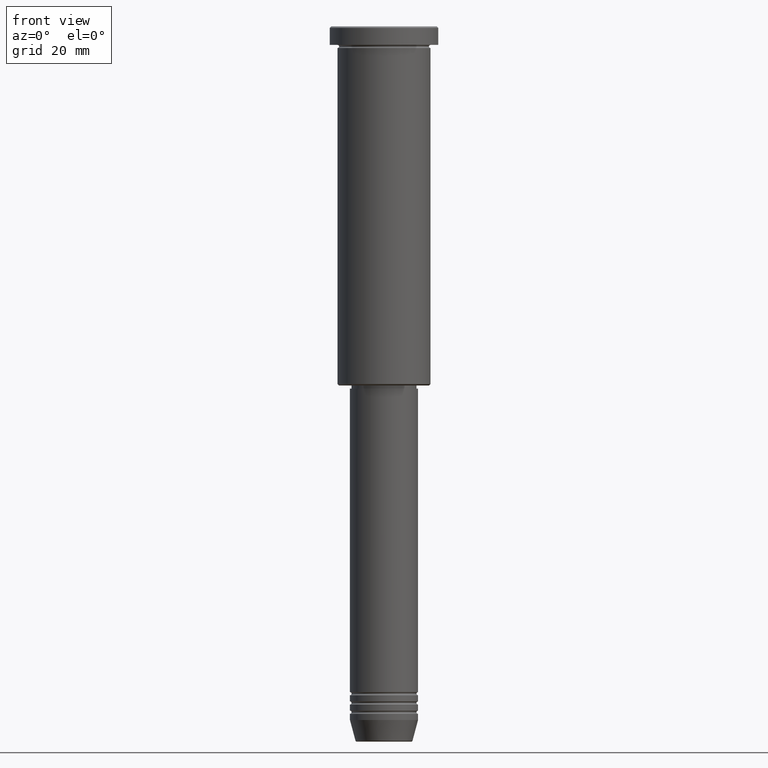
[diagram: clean part render]
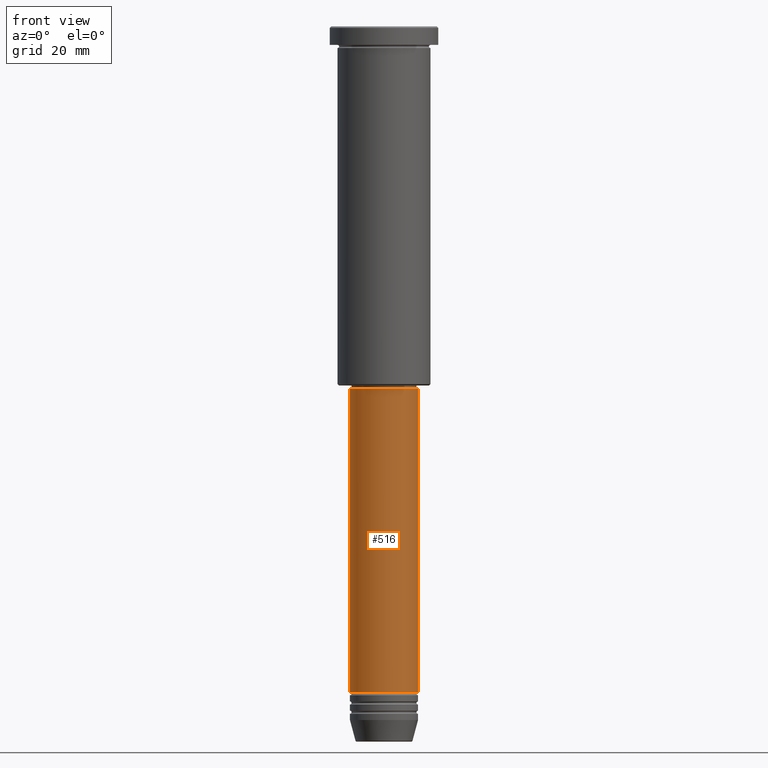
[diagram: same view with one face highlighted and labeled with its STEP entity id]
A machine part, front view. The second image highlights one B-rep face of the part: STEP entity #516.
In plain terms, the highlighted cylindrical surface (edge-blend (fillet) strip) has radius 11 mm, axis along (-0, -0, 1).
Its self-contained STEP definition (entity closure, byte-faithful):
#8 = CIRCLE ( 'NONE', #29, 11.00000000000000000 ) ;
#19 = DIRECTION ( 'NONE',  ( -0.000000000000000000, -0.000000000000000000, 1.000000000000000000 ) ) ;
#29 = AXIS2_PLACEMENT_3D ( 'NONE', #1095, #633, #100 ) ;
#42 = LINE ( 'NONE', #127, #1035 ) ;
#100 = DIRECTION ( 'NONE',  ( 1.000000000000000000, 0.000000000000000000, 0.000000000000000000 ) ) ;
#106 = VERTEX_POINT ( 'NONE', #1085 ) ;
#127 = CARTESIAN_POINT ( 'NONE',  ( -11.00000000000000000, 1.347111479062088405E-15, 0.000000000000000000 ) ) ;
#153 = CARTESIAN_POINT ( 'NONE',  ( 0.000000000000000000, 0.000000000000000000, 0.000000000000000000 ) ) ;
#160 = CIRCLE ( 'NONE', #355, 11.00000000000000000 ) ;
#177 = AXIS2_PLACEMENT_3D ( 'NONE', #153, #897, #445 ) ;
#205 = CARTESIAN_POINT ( 'NONE',  ( -11.00000000000000000, 1.347111479062088405E-15, -117.0000000000000000 ) ) ;
#212 = VECTOR ( 'NONE', #603, 1000.000000000000000 ) ;
#226 = CARTESIAN_POINT ( 'NONE',  ( 11.00000000000000000, 0.000000000000000000, 0.000000000000000000 ) ) ;
#317 = EDGE_LOOP ( 'NONE', ( #333, #1120, #569, #737 ) ) ;
#333 = ORIENTED_EDGE ( 'NONE', *, *, #587, .F. ) ;
#339 = FACE_OUTER_BOUND ( 'NONE', #317, .T. ) ;
#355 = AXIS2_PLACEMENT_3D ( 'NONE', #645, #19, #755 ) ;
#362 = EDGE_CURVE ( 'NONE', #635, #1171, #683, .T. ) ;
#438 = CYLINDRICAL_SURFACE ( 'NONE', #177, 11.00000000000000000 ) ;
#445 = DIRECTION ( 'NONE',  ( 1.000000000000000000, 0.000000000000000000, 0.000000000000000000 ) ) ;
#516 = ADVANCED_FACE ( 'NONE', ( #339 ), #438, .T. ) ;
#569 = ORIENTED_EDGE ( 'NONE', *, *, #362, .T. ) ;
#587 = EDGE_CURVE ( 'NONE', #106, #592, #42, .T. ) ;
#592 = VERTEX_POINT ( 'NONE', #205 ) ;
#603 = DIRECTION ( 'NONE',  ( -0.000000000000000000, -0.000000000000000000, 1.000000000000000000 ) ) ;
#633 = DIRECTION ( 'NONE',  ( -0.000000000000000000, -0.000000000000000000, 1.000000000000000000 ) ) ;
#635 = VERTEX_POINT ( 'NONE', #1040 ) ;
#645 = CARTESIAN_POINT ( 'NONE',  ( 0.000000000000000000, 0.000000000000000000, -214.9999999999999716 ) ) ;
#683 = LINE ( 'NONE', #226, #212 ) ;
#687 = DIRECTION ( 'NONE',  ( -0.000000000000000000, -0.000000000000000000, 1.000000000000000000 ) ) ;
#737 = ORIENTED_EDGE ( 'NONE', *, *, #895, .F. ) ;
#755 = DIRECTION ( 'NONE',  ( 1.000000000000000000, 0.000000000000000000, 0.000000000000000000 ) ) ;
#895 = EDGE_CURVE ( 'NONE', #592, #1171, #8, .T. ) ;
#897 = DIRECTION ( 'NONE',  ( -0.000000000000000000, -0.000000000000000000, 1.000000000000000000 ) ) ;
#1006 = EDGE_CURVE ( 'NONE', #106, #635, #160, .T. ) ;
#1027 = CARTESIAN_POINT ( 'NONE',  ( 11.00000000000000000, 0.000000000000000000, -117.0000000000000000 ) ) ;
#1035 = VECTOR ( 'NONE', #687, 1000.000000000000000 ) ;
#1040 = CARTESIAN_POINT ( 'NONE',  ( 11.00000000000000000, 0.000000000000000000, -214.9999999999999716 ) ) ;
#1085 = CARTESIAN_POINT ( 'NONE',  ( -11.00000000000000000, 1.347111479062088405E-15, -214.9999999999999716 ) ) ;
#1095 = CARTESIAN_POINT ( 'NONE',  ( 0.000000000000000000, 0.000000000000000000, -117.0000000000000000 ) ) ;
#1120 = ORIENTED_EDGE ( 'NONE', *, *, #1006, .T. ) ;
#1171 = VERTEX_POINT ( 'NONE', #1027 ) ;